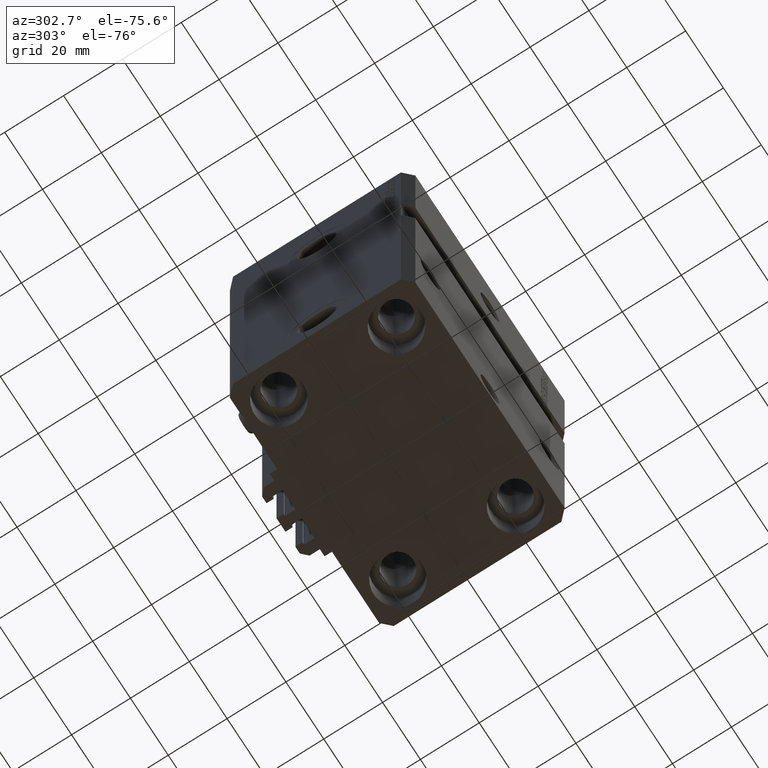
[diagram: clean part render]
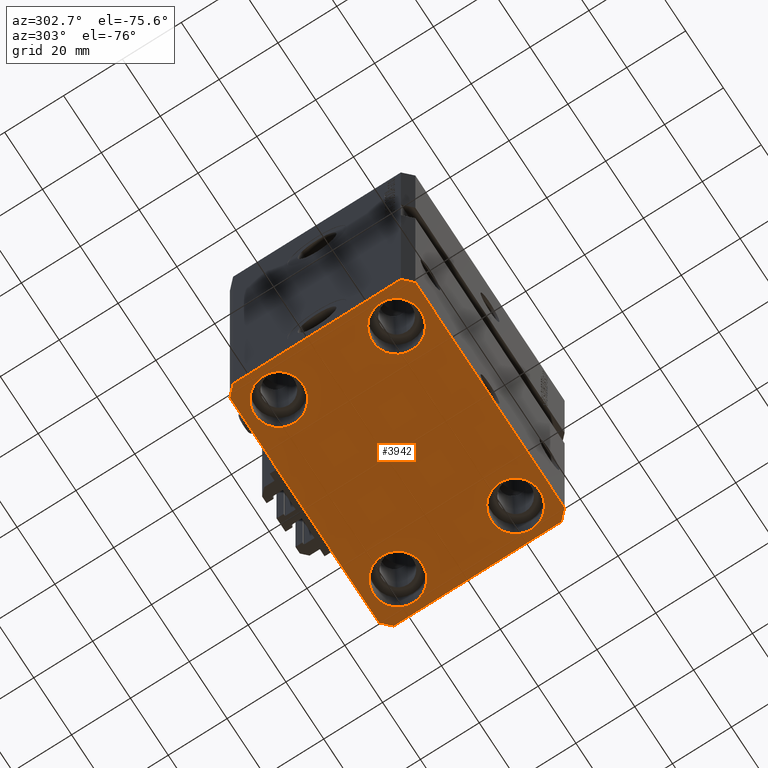
[diagram: same view with one face highlighted and labeled with its STEP entity id]
A machine part, auxiliary view. The second image highlights one B-rep face of the part: STEP entity #3942.
In plain terms, the highlighted planar face has unit normal (0, 0, 1).
Its self-contained STEP definition (entity closure, byte-faithful):
#730 = CARTESIAN_POINT ( 'NONE',  ( -42.50000000000000000, -28.50000000000000000, -123.0000000000000000 ) ) ;
#1232 = VECTOR ( 'NONE', #16365, 1000.000000000000000 ) ;
#1241 = DIRECTION ( 'NONE',  ( 1.000000000000000000, 0.000000000000000000, 0.000000000000000000 ) ) ;
#1410 = DIRECTION ( 'NONE',  ( 1.000000000000000000, 0.000000000000000000, 0.000000000000000000 ) ) ;
#1862 = ORIENTED_EDGE ( 'NONE', *, *, #32984, .F. ) ;
#2118 = DIRECTION ( 'NONE',  ( 1.000000000000000000, 0.000000000000000000, 0.000000000000000000 ) ) ;
#2775 = LINE ( 'NONE', #14479, #25188 ) ;
#3509 = CARTESIAN_POINT ( 'NONE',  ( -39.50000000000000711, -31.50000000000000000, -123.0000000000000000 ) ) ;
#3682 = CARTESIAN_POINT ( 'NONE',  ( 42.50000000000000711, -28.50000000000000355, -123.0000000000000000 ) ) ;
#3756 = DIRECTION ( 'NONE',  ( -0.000000000000000000, -0.000000000000000000, 1.000000000000000000 ) ) ;
#3942 = ADVANCED_FACE ( 'NONE', ( #32401, #47615, #20964, #31893, #27823 ), #8519, .F. ) ;
#4099 = CARTESIAN_POINT ( 'NONE',  ( 39.50000000000056843, 31.50000000000000000, -123.0000000000000000 ) ) ;
#4201 = AXIS2_PLACEMENT_3D ( 'NONE', #6043, #17260, #1241 ) ;
#4560 = ORIENTED_EDGE ( 'NONE', *, *, #42545, .T. ) ;
#4753 = CARTESIAN_POINT ( 'NONE',  ( -23.25000000000000000, 20.00000000000000000, -123.0000000000000000 ) ) ;
#4809 = ORIENTED_EDGE ( 'NONE', *, *, #46872, .F. ) ;
#5296 = EDGE_LOOP ( 'NONE', ( #10187, #33401 ) ) ;
#5891 = ORIENTED_EDGE ( 'NONE', *, *, #47312, .T. ) ;
#6043 = CARTESIAN_POINT ( 'NONE',  ( -31.50000000000000000, -20.00000000000000000, -123.0000000000000000 ) ) ;
#6296 = DIRECTION ( 'NONE',  ( 0.7071067811865483499, 0.7071067811865466846, 0.000000000000000000 ) ) ;
#7625 = VERTEX_POINT ( 'NONE', #15490 ) ;
#7827 = CARTESIAN_POINT ( 'NONE',  ( 31.50000000000000000, 20.00000000000001066, -123.0000000000000000 ) ) ;
#8004 = ORIENTED_EDGE ( 'NONE', *, *, #41316, .F. ) ;
#8069 = ORIENTED_EDGE ( 'NONE', *, *, #37989, .T. ) ;
#8366 = VERTEX_POINT ( 'NONE', #18439 ) ;
#8519 = PLANE ( 'NONE',  #23331 ) ;
#8547 = DIRECTION ( 'NONE',  ( 1.000000000000000000, 0.000000000000000000, 0.000000000000000000 ) ) ;
#8880 = CARTESIAN_POINT ( 'NONE',  ( 39.50000000000000711, -31.50000000000000000, -123.0000000000000000 ) ) ;
#10187 = ORIENTED_EDGE ( 'NONE', *, *, #48639, .T. ) ;
#10226 = AXIS2_PLACEMENT_3D ( 'NONE', #30670, #37264, #41326 ) ;
#10239 = EDGE_CURVE ( 'NONE', #33286, #24190, #31523, .T. ) ;
#11050 = CARTESIAN_POINT ( 'NONE',  ( 39.74999999999999289, 20.00000000000001066, -123.0000000000000000 ) ) ;
#11983 = DIRECTION ( 'NONE',  ( -1.000000000000000000, 0.000000000000000000, 0.000000000000000000 ) ) ;
#12043 = LINE ( 'NONE', #27776, #1232 ) ;
#12496 = LINE ( 'NONE', #4099, #13267 ) ;
#12680 = CIRCLE ( 'NONE', #10226, 8.249999999999992895 ) ;
#12699 = LINE ( 'NONE', #8880, #23445 ) ;
#12748 = VERTEX_POINT ( 'NONE', #20298 ) ;
#12989 = LINE ( 'NONE', #17527, #43666 ) ;
#13259 = CARTESIAN_POINT ( 'NONE',  ( -39.75000000000000000, 20.00000000000000000, -123.0000000000000000 ) ) ;
#13267 = VECTOR ( 'NONE', #11983, 1000.000000000000000 ) ;
#13421 = VERTEX_POINT ( 'NONE', #730 ) ;
#13899 = VECTOR ( 'NONE', #19194, 1000.000000000000000 ) ;
#14422 = CARTESIAN_POINT ( 'NONE',  ( 39.74999999999999289, -20.00000000000000000, -123.0000000000000000 ) ) ;
#14479 = CARTESIAN_POINT ( 'NONE',  ( 42.50000000000051870, 28.49999999999995381, -123.0000000000000000 ) ) ;
#14480 = CARTESIAN_POINT ( 'NONE',  ( -31.50000000000000000, 20.00000000000000000, -123.0000000000000000 ) ) ;
#14531 = AXIS2_PLACEMENT_3D ( 'NONE', #31390, #20484, #1410 ) ;
#14567 = CARTESIAN_POINT ( 'NONE',  ( 23.25000000000000355, 20.00000000000001066, -123.0000000000000000 ) ) ;
#14737 = DIRECTION ( 'NONE',  ( -0.7071067811865356934, 0.7071067811865594521, 0.000000000000000000 ) ) ;
#14999 = ORIENTED_EDGE ( 'NONE', *, *, #34871, .F. ) ;
#15406 = EDGE_CURVE ( 'NONE', #30414, #13421, #35760, .T. ) ;
#15490 = CARTESIAN_POINT ( 'NONE',  ( -39.75000000000000000, -20.00000000000000000, -123.0000000000000000 ) ) ;
#15820 = ORIENTED_EDGE ( 'NONE', *, *, #30228, .T. ) ;
#16102 = CARTESIAN_POINT ( 'NONE',  ( 42.50000000000000711, -28.50000000000000355, -123.0000000000000000 ) ) ;
#16365 = DIRECTION ( 'NONE',  ( 0.7071067811865471286, -0.7071067811865479058, 0.000000000000000000 ) ) ;
#17260 = DIRECTION ( 'NONE',  ( -0.000000000000000000, -0.000000000000000000, 1.000000000000000000 ) ) ;
#17290 = CIRCLE ( 'NONE', #48905, 8.250000000000000000 ) ;
#17527 = CARTESIAN_POINT ( 'NONE',  ( -39.50000000000000711, 31.50000000000000000, -123.0000000000000000 ) ) ;
#17975 = AXIS2_PLACEMENT_3D ( 'NONE', #21941, #40957, #2118 ) ;
#18439 = CARTESIAN_POINT ( 'NONE',  ( 23.25000000000000355, -20.00000000000000000, -123.0000000000000000 ) ) ;
#19012 = VERTEX_POINT ( 'NONE', #24812 ) ;
#19194 = DIRECTION ( 'NONE',  ( 8.886653596232072440E-15, 1.000000000000000000, 0.000000000000000000 ) ) ;
#19236 = VERTEX_POINT ( 'NONE', #20887 ) ;
#19637 = EDGE_LOOP ( 'NONE', ( #33898, #5891 ) ) ;
#19975 = VERTEX_POINT ( 'NONE', #4753 ) ;
#20298 = CARTESIAN_POINT ( 'NONE',  ( 39.50000000000056843, 31.50000000000000000, -123.0000000000000000 ) ) ;
#20484 = DIRECTION ( 'NONE',  ( -0.000000000000000000, -0.000000000000000000, 1.000000000000000000 ) ) ;
#20566 = EDGE_LOOP ( 'NONE', ( #8004, #20617, #22985, #1862, #14999, #4809, #28006, #24712 ) ) ;
#20600 = DIRECTION ( 'NONE',  ( -0.7071067811865471286, -0.7071067811865479058, 0.000000000000000000 ) ) ;
#20617 = ORIENTED_EDGE ( 'NONE', *, *, #35116, .F. ) ;
#20887 = CARTESIAN_POINT ( 'NONE',  ( 39.50000000000000711, -31.50000000000000000, -123.0000000000000000 ) ) ;
#20964 = FACE_BOUND ( 'NONE', #32255, .T. ) ;
#21577 = AXIS2_PLACEMENT_3D ( 'NONE', #43323, #35716, #8547 ) ;
#21941 = CARTESIAN_POINT ( 'NONE',  ( -31.50000000000000000, -20.00000000000000000, -123.0000000000000000 ) ) ;
#22985 = ORIENTED_EDGE ( 'NONE', *, *, #37556, .F. ) ;
#23320 = DIRECTION ( 'NONE',  ( 1.000000000000000000, 0.000000000000000000, 0.000000000000000000 ) ) ;
#23331 = AXIS2_PLACEMENT_3D ( 'NONE', #24536, #36444, #23771 ) ;
#23445 = VECTOR ( 'NONE', #6296, 1000.000000000000000 ) ;
#23771 = DIRECTION ( 'NONE',  ( 1.000000000000000000, 0.000000000000000000, -0.000000000000000000 ) ) ;
#24190 = VERTEX_POINT ( 'NONE', #11050 ) ;
#24536 = CARTESIAN_POINT ( 'NONE',  ( 0.000000000000000000, 0.000000000000000000, -123.0000000000000000 ) ) ;
#24602 = DIRECTION ( 'NONE',  ( 0.000000000000000000, -1.000000000000000000, 0.000000000000000000 ) ) ;
#24712 = ORIENTED_EDGE ( 'NONE', *, *, #27618, .F. ) ;
#24812 = CARTESIAN_POINT ( 'NONE',  ( -23.25000000000000000, -20.00000000000000000, -123.0000000000000000 ) ) ;
#25188 = VECTOR ( 'NONE', #14737, 1000.000000000000114 ) ;
#25445 = VERTEX_POINT ( 'NONE', #50072 ) ;
#25799 = CIRCLE ( 'NONE', #44445, 8.249999999999992895 ) ;
#26144 = CARTESIAN_POINT ( 'NONE',  ( 42.50000000000051870, 28.49999999999995381, -123.0000000000000000 ) ) ;
#26407 = AXIS2_PLACEMENT_3D ( 'NONE', #14480, #30472, #33762 ) ;
#26786 = VECTOR ( 'NONE', #49479, 1000.000000000000000 ) ;
#26887 = CIRCLE ( 'NONE', #17975, 8.250000000000000000 ) ;
#27618 = EDGE_CURVE ( 'NONE', #46513, #30414, #12989, .T. ) ;
#27776 = CARTESIAN_POINT ( 'NONE',  ( -42.50000000000000000, -28.50000000000000000, -123.0000000000000000 ) ) ;
#27823 = FACE_OUTER_BOUND ( 'NONE', #20566, .T. ) ;
#28006 = ORIENTED_EDGE ( 'NONE', *, *, #15406, .F. ) ;
#28256 = ORIENTED_EDGE ( 'NONE', *, *, #10239, .T. ) ;
#28832 = CIRCLE ( 'NONE', #26407, 8.250000000000000000 ) ;
#30228 = EDGE_CURVE ( 'NONE', #24190, #33286, #25799, .T. ) ;
#30414 = VERTEX_POINT ( 'NONE', #42478 ) ;
#30472 = DIRECTION ( 'NONE',  ( -0.000000000000000000, -0.000000000000000000, 1.000000000000000000 ) ) ;
#30670 = CARTESIAN_POINT ( 'NONE',  ( 31.50000000000000000, -20.00000000000000000, -123.0000000000000000 ) ) ;
#31097 = EDGE_LOOP ( 'NONE', ( #4560, #8069 ) ) ;
#31117 = LINE ( 'NONE', #3682, #13899 ) ;
#31390 = CARTESIAN_POINT ( 'NONE',  ( 31.50000000000000000, 20.00000000000001066, -123.0000000000000000 ) ) ;
#31523 = CIRCLE ( 'NONE', #14531, 8.249999999999992895 ) ;
#31893 = FACE_BOUND ( 'NONE', #19637, .T. ) ;
#32255 = EDGE_LOOP ( 'NONE', ( #28256, #15820 ) ) ;
#32401 = FACE_BOUND ( 'NONE', #31097, .T. ) ;
#32746 = VERTEX_POINT ( 'NONE', #13259 ) ;
#32984 = EDGE_CURVE ( 'NONE', #19236, #45822, #12699, .T. ) ;
#33286 = VERTEX_POINT ( 'NONE', #14567 ) ;
#33401 = ORIENTED_EDGE ( 'NONE', *, *, #48713, .T. ) ;
#33762 = DIRECTION ( 'NONE',  ( 1.000000000000000000, 0.000000000000000000, 0.000000000000000000 ) ) ;
#33898 = ORIENTED_EDGE ( 'NONE', *, *, #41656, .T. ) ;
#34871 = EDGE_CURVE ( 'NONE', #25445, #19236, #38528, .T. ) ;
#35116 = EDGE_CURVE ( 'NONE', #39448, #12748, #2775, .T. ) ;
#35716 = DIRECTION ( 'NONE',  ( -0.000000000000000000, -0.000000000000000000, 1.000000000000000000 ) ) ;
#35760 = LINE ( 'NONE', #47937, #47117 ) ;
#36444 = DIRECTION ( 'NONE',  ( 0.000000000000000000, 0.000000000000000000, 1.000000000000000000 ) ) ;
#37264 = DIRECTION ( 'NONE',  ( -0.000000000000000000, -0.000000000000000000, 1.000000000000000000 ) ) ;
#37556 = EDGE_CURVE ( 'NONE', #45822, #39448, #31117, .T. ) ;
#37989 = EDGE_CURVE ( 'NONE', #19012, #7625, #26887, .T. ) ;
#38528 = LINE ( 'NONE', #3509, #26786 ) ;
#39448 = VERTEX_POINT ( 'NONE', #26144 ) ;
#39572 = DIRECTION ( 'NONE',  ( 1.000000000000000000, 0.000000000000000000, 0.000000000000000000 ) ) ;
#40957 = DIRECTION ( 'NONE',  ( -0.000000000000000000, -0.000000000000000000, 1.000000000000000000 ) ) ;
#41316 = EDGE_CURVE ( 'NONE', #12748, #46513, #12496, .T. ) ;
#41326 = DIRECTION ( 'NONE',  ( 1.000000000000000000, 0.000000000000000000, 0.000000000000000000 ) ) ;
#41656 = EDGE_CURVE ( 'NONE', #32746, #19975, #17290, .T. ) ;
#42375 = CARTESIAN_POINT ( 'NONE',  ( -31.50000000000000000, 20.00000000000000000, -123.0000000000000000 ) ) ;
#42478 = CARTESIAN_POINT ( 'NONE',  ( -42.50000000000000000, 28.50000000000000000, -123.0000000000000000 ) ) ;
#42545 = EDGE_CURVE ( 'NONE', #7625, #19012, #45559, .T. ) ;
#42622 = DIRECTION ( 'NONE',  ( -0.000000000000000000, -0.000000000000000000, 1.000000000000000000 ) ) ;
#43118 = CARTESIAN_POINT ( 'NONE',  ( -39.50000000000000711, 31.50000000000000000, -123.0000000000000000 ) ) ;
#43323 = CARTESIAN_POINT ( 'NONE',  ( 31.50000000000000000, -20.00000000000000000, -123.0000000000000000 ) ) ;
#43463 = CIRCLE ( 'NONE', #21577, 8.249999999999992895 ) ;
#43666 = VECTOR ( 'NONE', #20600, 1000.000000000000000 ) ;
#44445 = AXIS2_PLACEMENT_3D ( 'NONE', #7827, #3756, #23320 ) ;
#45559 = CIRCLE ( 'NONE', #4201, 8.250000000000000000 ) ;
#45822 = VERTEX_POINT ( 'NONE', #16102 ) ;
#46513 = VERTEX_POINT ( 'NONE', #43118 ) ;
#46872 = EDGE_CURVE ( 'NONE', #13421, #25445, #12043, .T. ) ;
#47117 = VECTOR ( 'NONE', #24602, 1000.000000000000000 ) ;
#47312 = EDGE_CURVE ( 'NONE', #19975, #32746, #28832, .T. ) ;
#47615 = FACE_BOUND ( 'NONE', #5296, .T. ) ;
#47937 = CARTESIAN_POINT ( 'NONE',  ( -42.50000000000000000, 28.50000000000000000, -123.0000000000000000 ) ) ;
#48635 = VERTEX_POINT ( 'NONE', #14422 ) ;
#48639 = EDGE_CURVE ( 'NONE', #8366, #48635, #12680, .T. ) ;
#48713 = EDGE_CURVE ( 'NONE', #48635, #8366, #43463, .T. ) ;
#48905 = AXIS2_PLACEMENT_3D ( 'NONE', #42375, #42622, #39572 ) ;
#49479 = DIRECTION ( 'NONE',  ( 1.000000000000000000, 0.000000000000000000, 0.000000000000000000 ) ) ;
#50072 = CARTESIAN_POINT ( 'NONE',  ( -39.50000000000000711, -31.50000000000000000, -123.0000000000000000 ) ) ;